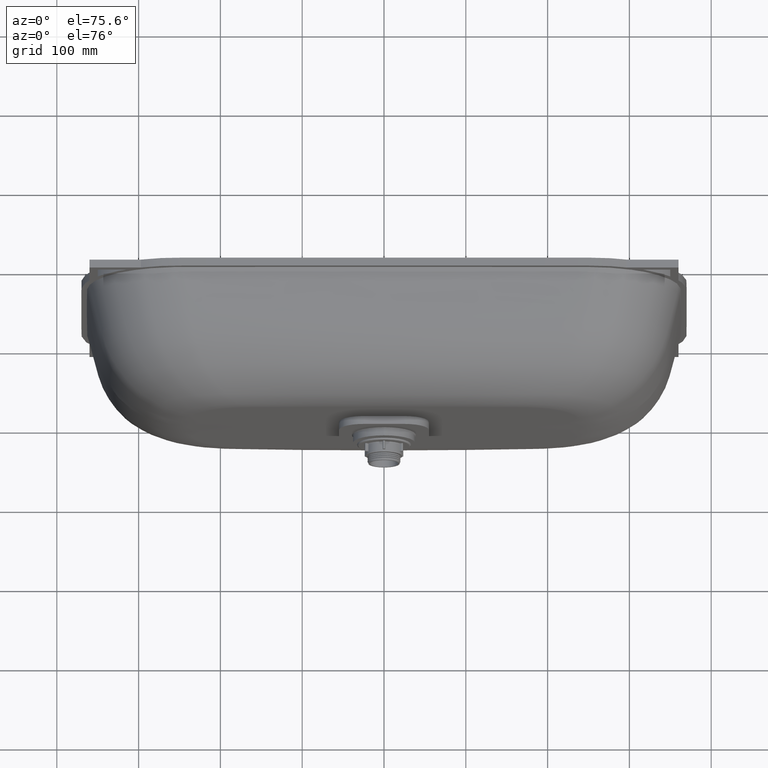
[diagram: clean part render]
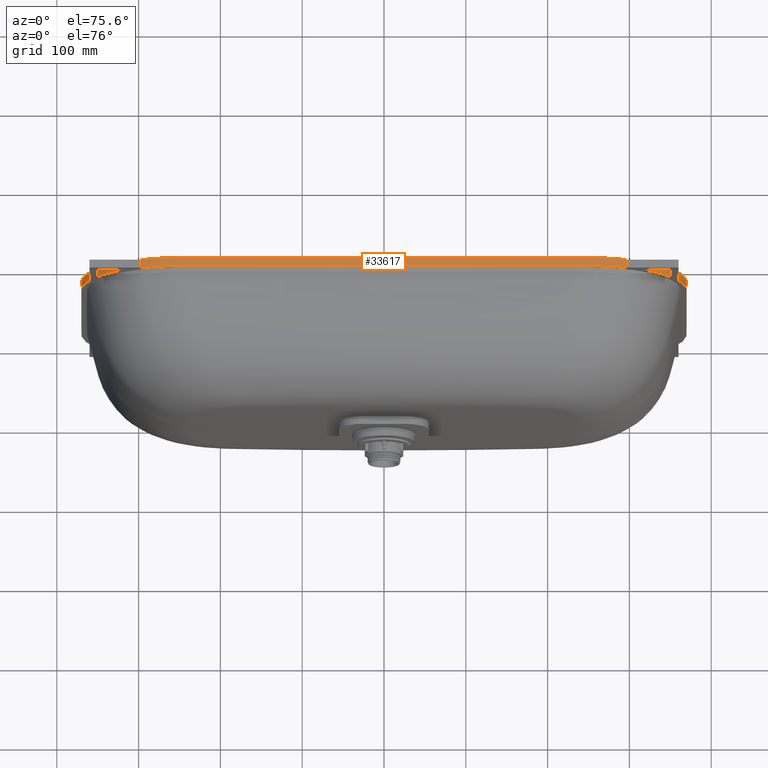
[diagram: same view with one face highlighted and labeled with its STEP entity id]
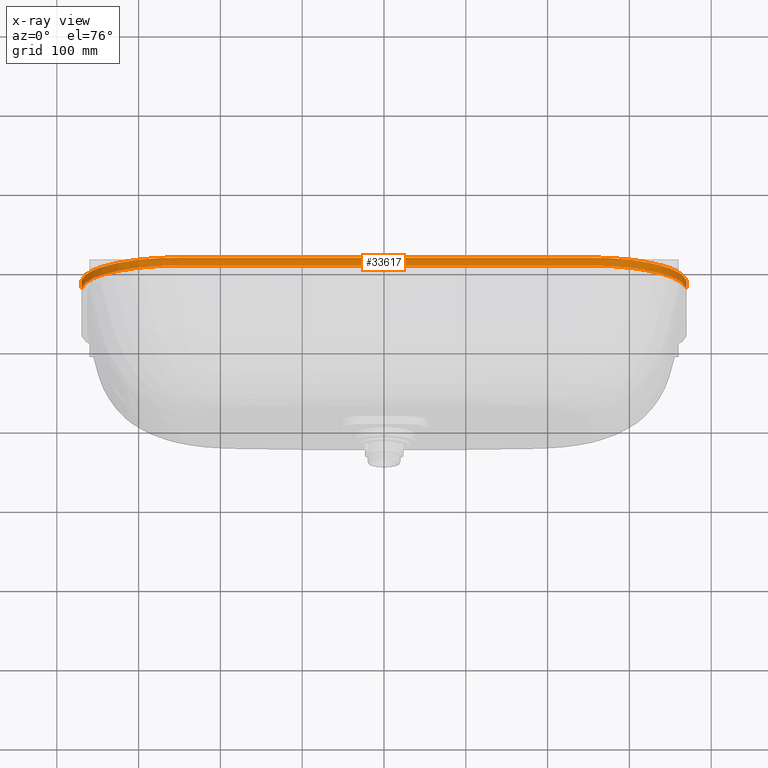
[diagram: x-ray of the same camera — body ghosted, the highlighted face saturated]
A machine part, auxiliary view. The second image highlights one B-rep face of the part: STEP entity #33617.
The next image is the same camera in x-ray: the body ghosted, the highlighted face saturated — about 0% of this face is hidden behind the body in this view.
In plain terms, the highlighted face is a freeform B-spline surface patch.
Its self-contained STEP definition (entity closure, byte-faithful):
#84 = CARTESIAN_POINT ( 'NONE',  ( -64.89067382028767400, -9.999999999999927200, 229.9999999998673000 ) ) ;
#127 = CARTESIAN_POINT ( 'NONE',  ( -254.1704036494610900, 7.255323859892229700E-014, 229.9357047427391500 ) ) ;
#355 = CARTESIAN_POINT ( 'NONE',  ( 129.7813478840280400, 7.285838599102589800E-014, 229.9999999981663400 ) ) ;
#391 = CARTESIAN_POINT ( 'NONE',  ( -194.6720158728519400, 7.257352614727864900E-014, 230.0000000356703000 ) ) ;
#620 = CARTESIAN_POINT ( 'NONE',  ( 235.2282897767607300, -9.999999999999927200, 230.0000025992093200 ) ) ;
#656 = CARTESIAN_POINT ( 'NONE',  ( 178.4493543980382200, 7.257352613307444500E-014, 229.9999999906543500 ) ) ;
#895 = CARTESIAN_POINT ( 'NONE',  ( 249.9071089342732000, 7.285838599102589800E-014, 230.0001508669372800 ) ) ;
#934 = CARTESIAN_POINT ( 'NONE',  ( 252.1423367717181100, 7.256893168442546200E-014, 229.9854392652008000 ) ) ;
#1165 = CARTESIAN_POINT ( 'NONE',  ( 272.5347273984068000, -9.999999999999928900, 227.9402078853942200 ) ) ;
#1200 = CARTESIAN_POINT ( 'NONE',  ( 358.9368303385653000, 5.068706104983447200E-014, 160.6374205879357900 ) ) ;
#1429 = CARTESIAN_POINT ( 'NONE',  ( 344.0916251262449400, 5.898059818321144100E-014, 185.3011088497744400 ) ) ;
#1702 = CARTESIAN_POINT ( 'NONE',  ( 369.2231796589291000, -9.999999999999960900, 123.9083132636472600 ) ) ;
#1802 = VERTEX_POINT ( 'NONE', #77585 ) ;
#1979 = CARTESIAN_POINT ( 'NONE',  ( 369.9998421130369500, 3.469446951953614200E-014, 109.3485733155334900 ) ) ;
#2245 = CARTESIAN_POINT ( 'NONE',  ( 370.0000001376325800, -9.999999999999971600, 93.28033090629530500 ) ) ;
#2515 = CARTESIAN_POINT ( 'NONE',  ( 370.0000000003951800, 5.204170427930421300E-015, 16.22266841846510500 ) ) ;
#2568 = CARTESIAN_POINT ( 'NONE',  ( -370.0000000000000000, -10.00000000000000000, -3.122502256758252800E-014 ) ) ;
#2846 = CARTESIAN_POINT ( 'NONE',  ( -370.0000000564165800, -9.999999999999975100, 78.40955897690190600 ) ) ;
#3122 = CARTESIAN_POINT ( 'NONE',  ( -369.9117756355504400, -9.999999999999964500, 115.0811365367341500 ) ) ;
#3400 = CARTESIAN_POINT ( 'NONE',  ( -289.4804807030344000, -9.999999999999928900, 223.4557360990969500 ) ) ;
#3602 = CARTESIAN_POINT ( 'NONE',  ( 369.9999697595850400, 3.380663933535774200E-014, 107.1399925168131400 ) ) ;
#3683 = CARTESIAN_POINT ( 'NONE',  ( -245.3670214626337700, -9.999999999999927200, 230.0000054136309600 ) ) ;
#3711 = CARTESIAN_POINT ( 'NONE',  ( 369.9999999999998900, 1.698670210949542000E-028, 5.754945131553057500E-013 ) ) ;
#3794 = ORIENTED_EDGE ( 'NONE', *, *, #40063, .T. ) ;
#3896 = CARTESIAN_POINT ( 'NONE',  ( 369.9999999999998900, 1.698670210949542000E-028, 5.754945131553057500E-013 ) ) ;
#3972 = CARTESIAN_POINT ( 'NONE',  ( -1.838806884535415500E-013, -9.999999999999927200, 229.9999999999805900 ) ) ;
#4021 = CARTESIAN_POINT ( 'NONE',  ( -370.0000000000000000, -10.00000000000000000, -3.122502256758252800E-014 ) ) ;
#4252 = CARTESIAN_POINT ( 'NONE',  ( 245.3670214626335200, -9.999999999999927200, 230.0000054136308200 ) ) ;
#4298 = CARTESIAN_POINT ( 'NONE',  ( -369.9999999808320600, -9.999999999999978700, 64.89067556598732300 ) ) ;
#4533 = CARTESIAN_POINT ( 'NONE',  ( 289.4804807030340600, -9.999999999999928900, 223.4557360990970400 ) ) ;
#4579 = CARTESIAN_POINT ( 'NONE',  ( -369.9999973128920500, 3.295974604355933500E-014, 103.4197589538131700 ) ) ;
#4815 = CARTESIAN_POINT ( 'NONE',  ( 369.9117756355506100, -9.999999999999964500, 115.0811365367344900 ) ) ;
#4862 = CARTESIAN_POINT ( 'NONE',  ( -369.9837355351535300, -9.999999999999966200, 112.2304330767915300 ) ) ;
#5097 = CARTESIAN_POINT ( 'NONE',  ( 370.0000000564166400, -9.999999999999975100, 78.40955897690213300 ) ) ;
#5141 = CARTESIAN_POINT ( 'NONE',  ( -365.5811764428860300, 4.510281037539698400E-014, 142.7334832046060700 ) ) ;
#5413 = CARTESIAN_POINT ( 'NONE',  ( -301.3375124675764600, -9.999999999999930700, 218.7966092659684700 ) ) ;
#5687 = CARTESIAN_POINT ( 'NONE',  ( -257.3966411606818400, 7.285838599102589800E-014, 229.7905751632785000 ) ) ;
#5967 = CARTESIAN_POINT ( 'NONE',  ( -247.0602996470170200, -9.999999999999927200, 229.9999833621211800 ) ) ;
#6010 = CARTESIAN_POINT ( 'NONE',  ( -370.0000523813991400, 3.423080837808655100E-014, 108.4842689358032700 ) ) ;
#6254 = CARTESIAN_POINT ( 'NONE',  ( -208.1909280709338400, 7.285838599102589800E-014, 229.9999998948310600 ) ) ;
#6295 = CARTESIAN_POINT ( 'NONE',  ( -353.0913786025861300, 5.427108873845920500E-014, 171.9959201989187200 ) ) ;
#6524 = CARTESIAN_POINT ( 'NONE',  ( -32.44533689492804000, -9.999999999999927200, 230.0000000000374300 ) ) ;
#6564 = CARTESIAN_POINT ( 'NONE',  ( -250.7332074480161500, 7.257326797009672400E-014, 229.9991818206130200 ) ) ;
#6804 = CARTESIAN_POINT ( 'NONE',  ( 156.8191275139742500, 7.285838599102589800E-014, 230.0000000053949200 ) ) ;
#6842 = CARTESIAN_POINT ( 'NONE',  ( -156.8191275139746200, 7.257352613772573300E-014, 230.0000000053952400 ) ) ;
#6988 = CARTESIAN_POINT ( 'NONE',  ( -370.0000000000000000, -10.00000000000000000, -3.122502256758252800E-014 ) ) ;
#7074 = CARTESIAN_POINT ( 'NONE',  ( 241.3132199434992300, -9.999999999999927200, 229.9999933736821400 ) ) ;
#7113 = CARTESIAN_POINT ( 'NONE',  ( 208.1909280709335200, 7.257352610283856700E-014, 229.9999998948308600 ) ) ;
#7341 = CARTESIAN_POINT ( 'NONE',  ( 250.7332074480156900, 7.285838599102589800E-014, 229.9991818206130200 ) ) ;
#7375 = CARTESIAN_POINT ( 'NONE',  ( 257.3966411606815000, 7.250744483662612200E-014, 229.7905751632782800 ) ) ;
#7612 = CARTESIAN_POINT ( 'NONE',  ( 280.3363205952121600, -9.999999999999928900, 226.2329616254817500 ) ) ;
#7647 = CARTESIAN_POINT ( 'NONE',  ( 365.5811764428856300, 4.503770510363108500E-014, 142.7334832046064200 ) ) ;
#7888 = CARTESIAN_POINT ( 'NONE',  ( 353.0913786025860800, 5.377642775528102000E-014, 171.9959201989187800 ) ) ;
#8154 = CARTESIAN_POINT ( 'NONE',  ( 369.6864430236645400, -9.999999999999962700, 119.1001921969906300 ) ) ;
#8421 = CARTESIAN_POINT ( 'NONE',  ( 370.0000523813991400, 3.469446951953614200E-014, 108.4842689358035600 ) ) ;
#8692 = CARTESIAN_POINT ( 'NONE',  ( 369.9999999215504000, -9.999999999999971600, 87.87279466569570700 ) ) ;
#8966 = CARTESIAN_POINT ( 'NONE',  ( 369.9999999999998900, 1.734723475976807100E-015, 5.407556139488741000 ) ) ;
#9020 = CARTESIAN_POINT ( 'NONE',  ( -370.0000000000000000, -9.999999999999998200, 5.407556139488176200 ) ) ;
#9293 = CARTESIAN_POINT ( 'NONE',  ( -370.0000001376324700, -9.999999999999971600, 93.28033090629507700 ) ) ;
#9574 = CARTESIAN_POINT ( 'NONE',  ( -369.2231796589291500, -9.999999999999960900, 123.9083132636468500 ) ) ;
#9860 = CARTESIAN_POINT ( 'NONE',  ( -272.5347273984072600, -9.999999999999928900, 227.9402078853941300 ) ) ;
#10069 = CARTESIAN_POINT ( 'NONE',  ( 369.9999973128919900, 3.263276773659048600E-014, 103.4197589538134400 ) ) ;
#10150 = CARTESIAN_POINT ( 'NONE',  ( -235.2282897767611300, -9.999999999999927200, 230.0000025992095500 ) ) ;
#10429 = CARTESIAN_POINT ( 'NONE',  ( 64.89067382028734700, -9.999999999999927200, 229.9999999998671300 ) ) ;
#10711 = CARTESIAN_POINT ( 'NONE',  ( 248.4051379303400300, -9.999999999999927200, 230.0000288654553300 ) ) ;
#10761 = CARTESIAN_POINT ( 'NONE',  ( -370.0000000564165800, -9.999999999999975100, 78.40955897690190600 ) ) ;
#10998 = CARTESIAN_POINT ( 'NONE',  ( 315.4333475073833600, -9.999999999999934300, 211.1954338164224200 ) ) ;
#11045 = CARTESIAN_POINT ( 'NONE',  ( -370.0000102567384500, 3.295974604355933500E-014, 105.4463998884247800 ) ) ;
#11276 = CARTESIAN_POINT ( 'NONE',  ( 369.9985107857468700, -9.999999999999966200, 110.8386633332187300 ) ) ;
#11318 = CARTESIAN_POINT ( 'NONE',  ( -369.9117756355504400, -9.999999999999964500, 115.0811365367341500 ) ) ;
#11551 = CARTESIAN_POINT ( 'NONE',  ( 370.0000000051377900, -9.999999999999984000, 48.66800487696834700 ) ) ;
#11593 = CARTESIAN_POINT ( 'NONE',  ( -362.6162986912610800, 4.857225732735059900E-014, 151.8170165020855200 ) ) ;
#11872 = CARTESIAN_POINT ( 'NONE',  ( -289.4804807030344000, -9.999999999999928900, 223.4557360990969500 ) ) ;
#12154 = CARTESIAN_POINT ( 'NONE',  ( -254.1704036494610900, 7.285838599102589800E-014, 229.9357047427391500 ) ) ;
#12194 = CARTESIAN_POINT ( 'NONE',  ( -369.9999999986166600, 1.023770658547312000E-014, 32.44533702614217700 ) ) ;
#12421 = CARTESIAN_POINT ( 'NONE',  ( -245.3670214626337700, -9.999999999999927200, 230.0000054136309600 ) ) ;
#12460 = CARTESIAN_POINT ( 'NONE',  ( -370.0002737202537400, 3.470426588967557600E-014, 109.9847503573808300 ) ) ;
#12503 = ORIENTED_EDGE ( 'NONE', *, *, #77393, .T. ) ;
#12702 = CARTESIAN_POINT ( 'NONE',  ( -194.6720158728519400, 7.285838599102589800E-014, 230.0000000356703000 ) ) ;
#12743 = CARTESIAN_POINT ( 'NONE',  ( -330.7752597798501000, 6.293298880005854700E-014, 199.4472116028093500 ) ) ;
#12982 = CARTESIAN_POINT ( 'NONE',  ( -1.838806884535415500E-013, -9.999999999999927200, 229.9999999999805900 ) ) ;
#13021 = CARTESIAN_POINT ( 'NONE',  ( -249.2680254088367100, 7.257349867728125200E-014, 229.9999129777617100 ) ) ;
#13253 = CARTESIAN_POINT ( 'NONE',  ( 178.4493543980382200, 7.285838599102589800E-014, 229.9999999906543500 ) ) ;
#13289 = CARTESIAN_POINT ( 'NONE',  ( -97.33601062392065700, 7.257352613617832800E-014, 230.0000000004911600 ) ) ;
#13519 = CARTESIAN_POINT ( 'NONE',  ( 245.3670214626335200, -9.999999999999927200, 230.0000054136308200 ) ) ;
#13558 = CARTESIAN_POINT ( 'NONE',  ( 227.1174660438716200, 7.257352591661618700E-014, 229.9999993046549200 ) ) ;
#13659 = VECTOR ( 'NONE', #45424, 1000.000000000000000 ) ;
#13792 = CARTESIAN_POINT ( 'NONE',  ( 252.1423367717181100, 7.285838599102589800E-014, 229.9854392652008000 ) ) ;
#13829 = CARTESIAN_POINT ( 'NONE',  ( 266.2030324053480400, 7.223676244358867300E-014, 228.9327285942425200 ) ) ;
#14063 = CARTESIAN_POINT ( 'NONE',  ( 289.4804807030340600, -9.999999999999928900, 223.4557360990970400 ) ) ;
#14098 = CARTESIAN_POINT ( 'NONE',  ( 368.5694265312981800, 4.060189371351814900E-014, 128.6755109102223300 ) ) ;
#14333 = CARTESIAN_POINT ( 'NONE',  ( 358.9368303385653000, 5.030698080332740600E-014, 160.6374205879357900 ) ) ;
#14603 = CARTESIAN_POINT ( 'NONE',  ( 369.9117756355506100, -9.999999999999964500, 115.0811365367344900 ) ) ;
#14880 = CARTESIAN_POINT ( 'NONE',  ( 369.9999697595850400, 3.295974604355933500E-014, 107.1399925168131400 ) ) ;
#15148 = CARTESIAN_POINT ( 'NONE',  ( 370.0000000564166400, -9.999999999999975100, 78.40955897690213300 ) ) ;
#15415 = CARTESIAN_POINT ( 'NONE',  ( 369.9999999999998900, 0.0000000000000000000, 5.753749085366989100E-013 ) ) ;
#15554 = VECTOR ( 'NONE', #23734, 1000.000000000000000 ) ;
#15746 = CARTESIAN_POINT ( 'NONE',  ( -370.0000015512933900, -9.999999999999969800, 100.7155903604958800 ) ) ;
#15941 = EDGE_LOOP ( 'NONE', ( #3794, #12503, #23809, #23732 ) ) ;
#16028 = CARTESIAN_POINT ( 'NONE',  ( -367.4470581483515700, -9.999999999999957400, 134.9774096808805000 ) ) ;
#16310 = CARTESIAN_POINT ( 'NONE',  ( -261.4155354305588000, -9.999999999999927200, 229.4878407854311600 ) ) ;
#16514 = CARTESIAN_POINT ( 'NONE',  ( 369.9999994738989800, 3.071313493234845600E-014, 97.33605917397717600 ) ) ;
#16591 = CARTESIAN_POINT ( 'NONE',  ( -219.0059958477467900, -9.999999999999927200, 230.0000001821697100 ) ) ;
#16886 = CARTESIAN_POINT ( 'NONE',  ( 129.7813478840280400, -9.999999999999927200, 229.9999999981663400 ) ) ;
#16933 = CARTESIAN_POINT ( 'NONE',  ( -370.0000000000000000, 0.0000000000000000000, -3.438039326914875700E-014 ) ) ;
#17166 = CARTESIAN_POINT ( 'NONE',  ( 249.9071089342732000, -9.999999999999927200, 230.0001508669372800 ) ) ;
#17212 = CARTESIAN_POINT ( 'NONE',  ( -369.9999999215502800, -9.999999999999971600, 87.87279466569543700 ) ) ;
#17444 = CARTESIAN_POINT ( 'NONE',  ( 344.0916251262449400, -9.999999999999941400, 185.3011088497744400 ) ) ;
#17488 = CARTESIAN_POINT ( 'NONE',  ( -369.9999697595849900, 3.295974604355933500E-014, 107.1399925168127500 ) ) ;
#17717 = CARTESIAN_POINT ( 'NONE',  ( 369.9998421130369500, -9.999999999999966200, 109.3485733155334900 ) ) ;
#17765 = CARTESIAN_POINT ( 'NONE',  ( -369.6864430236645400, -9.999999999999962700, 119.1001921969900600 ) ) ;
#17993 = CARTESIAN_POINT ( 'NONE',  ( 370.0000000003951800, -9.999999999999994700, 16.22266841846510800 ) ) ;
#18039 = CARTESIAN_POINT ( 'NONE',  ( -358.9368303385656400, 5.030698080332740600E-014, 160.6374205879356200 ) ) ;
#18309 = CARTESIAN_POINT ( 'NONE',  ( -280.3363205952126100, -9.999999999999928900, 226.2329616254816400 ) ) ;
#18581 = CARTESIAN_POINT ( 'NONE',  ( -252.1423367717185900, 7.285838599102589800E-014, 229.9854392652010200 ) ) ;
#18620 = CARTESIAN_POINT ( 'NONE',  ( -369.9999999808320600, 2.047541364857563200E-014, 64.89067556598732300 ) ) ;
#18861 = CARTESIAN_POINT ( 'NONE',  ( -241.3132199434998600, -9.999999999999927200, 229.9999933736821700 ) ) ;
#18905 = CARTESIAN_POINT ( 'NONE',  ( -369.9837355351535300, 3.541286203545979000E-014, 112.2304330767915300 ) ) ;
#19146 = CARTESIAN_POINT ( 'NONE',  ( -178.4493543980385700, 7.285838599102589800E-014, 229.9999999906548000 ) ) ;
#19189 = CARTESIAN_POINT ( 'NONE',  ( -301.3375124675764600, 6.903844104798719000E-014, 218.7966092659684700 ) ) ;
#19417 = CARTESIAN_POINT ( 'NONE',  ( 32.44533689492779200, -9.999999999999927200, 230.0000000000372900 ) ) ;
#19454 = CARTESIAN_POINT ( 'NONE',  ( -247.0602996470170200, 7.257352088615582600E-014, 229.9999833621211800 ) ) ;
#19685 = CARTESIAN_POINT ( 'NONE',  ( 194.6720158728516600, 7.285838599102589800E-014, 230.0000000356700100 ) ) ;
#19722 = CARTESIAN_POINT ( 'NONE',  ( -32.44533689492804000, 7.257352613603516000E-014, 230.0000000000374300 ) ) ;
#19952 = CARTESIAN_POINT ( 'NONE',  ( 247.0602996470166500, -9.999999999999927200, 229.9999833621211300 ) ) ;
#19991 = CARTESIAN_POINT ( 'NONE',  ( 241.3132199434992300, 7.257352404517441300E-014, 229.9999933736821400 ) ) ;
#20229 = CARTESIAN_POINT ( 'NONE',  ( 254.1704036494607500, 7.285838599102589800E-014, 229.9357047427392300 ) ) ;
#20263 = CARTESIAN_POINT ( 'NONE',  ( 280.3363205952121600, 7.138488588416028100E-014, 226.2329616254817500 ) ) ;
#20494 = CARTESIAN_POINT ( 'NONE',  ( 301.3375124675763500, -9.999999999999930700, 218.7966092659686700 ) ) ;
#20769 = CARTESIAN_POINT ( 'NONE',  ( 362.6162986912609100, 4.857225732735059900E-014, 151.8170165020856600 ) ) ;
#21040 = CARTESIAN_POINT ( 'NONE',  ( 369.9837355351535300, -9.999999999999966200, 112.2304330767920200 ) ) ;
#21302 = CARTESIAN_POINT ( 'NONE',  ( 370.0000102567383900, 3.295974604355933500E-014, 105.4463998884250800 ) ) ;
#21564 = CARTESIAN_POINT ( 'NONE',  ( 369.9999999808321100, -9.999999999999978700, 64.89067556598752200 ) ) ;
#22168 = CARTESIAN_POINT ( 'NONE',  ( -370.0000102567384500, -9.999999999999968000, 105.4463998884247800 ) ) ;
#22452 = CARTESIAN_POINT ( 'NONE',  ( -362.6162986912610800, -9.999999999999952000, 151.8170165020855200 ) ) ;
#22653 = CARTESIAN_POINT ( 'NONE',  ( 369.6864430236645400, 3.758052570092913200E-014, 119.1001921969906300 ) ) ;
#22735 = CARTESIAN_POINT ( 'NONE',  ( -254.1704036494610900, -9.999999999999927200, 229.9357047427391500 ) ) ;
#22941 = CARTESIAN_POINT ( 'NONE',  ( 369.9999999215504000, 2.772712417528816500E-014, 87.87279466569570700 ) ) ;
#23024 = CARTESIAN_POINT ( 'NONE',  ( -194.6720158728519400, -9.999999999999927200, 230.0000000356703000 ) ) ;
#23309 = CARTESIAN_POINT ( 'NONE',  ( 178.4493543980382200, -9.999999999999927200, 229.9999999906543500 ) ) ;
#23354 = CARTESIAN_POINT ( 'NONE',  ( -370.0000000000000000, 1.734723475976807100E-015, 5.407556139488172600 ) ) ;
#23585 = CARTESIAN_POINT ( 'NONE',  ( 252.1423367717181100, -9.999999999999927200, 229.9854392652008000 ) ) ;
#23634 = CARTESIAN_POINT ( 'NONE',  ( -370.0000001376324700, -9.999999999999971600, 93.28033090629507700 ) ) ;
#23732 = ORIENTED_EDGE ( 'NONE', *, *, #73994, .F. ) ;
#23734 = DIRECTION ( 'NONE',  ( 3.108277162125713300E-032, 1.000000000000000000, -3.155370701566232400E-016 ) ) ;
#23809 = ORIENTED_EDGE ( 'NONE', *, *, #82451, .F. ) ;
#23878 = CARTESIAN_POINT ( 'NONE',  ( 358.9368303385653000, -9.999999999999950300, 160.6374205879357900 ) ) ;
#23925 = CARTESIAN_POINT ( 'NONE',  ( -370.0000523813991400, 3.469446951953614200E-014, 108.4842689358032700 ) ) ;
#24157 = CARTESIAN_POINT ( 'NONE',  ( 369.9999697595850400, -9.999999999999968000, 107.1399925168131400 ) ) ;
#24202 = CARTESIAN_POINT ( 'NONE',  ( -369.2231796589291500, -9.999999999999960900, 123.9083132636468500 ) ) ;
#24429 = CARTESIAN_POINT ( 'NONE',  ( 369.9999999999998900, -10.00000000000000000, 5.785302792382651700E-013 ) ) ;
#24471 = CARTESIAN_POINT ( 'NONE',  ( -353.0913786025861300, 5.377642775528102000E-014, 171.9959201989187200 ) ) ;
#24742 = CARTESIAN_POINT ( 'NONE',  ( -272.5347273984072600, -9.999999999999928900, 227.9402078853941300 ) ) ;
#24781 = CARTESIAN_POINT ( 'NONE',  ( -370.0000000000000000, 1.706284420961570000E-015, 5.407556139488172600 ) ) ;
#24950 = CARTESIAN_POINT ( 'NONE',  ( -370.0000000000000000, -10.00000000000000000, -3.122502256758252800E-014 ) ) ;
#25021 = CARTESIAN_POINT ( 'NONE',  ( -250.7332074480161500, 7.285838599102589800E-014, 229.9991818206130200 ) ) ;
#25062 = CARTESIAN_POINT ( 'NONE',  ( -369.9999999215502800, 2.772712417528809800E-014, 87.87279466569543700 ) ) ;
#25296 = CARTESIAN_POINT ( 'NONE',  ( -235.2282897767611300, -9.999999999999927200, 230.0000025992095500 ) ) ;
#25335 = CARTESIAN_POINT ( 'NONE',  ( -369.6864430236645400, 3.758052570092898100E-014, 119.1001921969900600 ) ) ;
#25572 = CARTESIAN_POINT ( 'NONE',  ( -156.8191275139746200, 7.285838599102589800E-014, 230.0000000053952400 ) ) ;
#25613 = CARTESIAN_POINT ( 'NONE',  ( -280.3363205952126100, 7.138488588416026800E-014, 226.2329616254816400 ) ) ;
#25846 = CARTESIAN_POINT ( 'NONE',  ( 64.89067382028734700, -9.999999999999927200, 229.9999999998671300 ) ) ;
#25885 = CARTESIAN_POINT ( 'NONE',  ( -241.3132199434998600, 7.257352404517443800E-014, 229.9999933736821700 ) ) ;
#26123 = CARTESIAN_POINT ( 'NONE',  ( 208.1909280709335200, 7.285838599102589800E-014, 229.9999998948308600 ) ) ;
#26158 = CARTESIAN_POINT ( 'NONE',  ( 32.44533689492779200, 7.257352613603510900E-014, 230.0000000000372900 ) ) ;
#26391 = CARTESIAN_POINT ( 'NONE',  ( 248.4051379303400300, -9.999999999999927200, 230.0000288654553300 ) ) ;
#26429 = CARTESIAN_POINT ( 'NONE',  ( 247.0602996470166500, 7.257352088615577600E-014, 229.9999833621211300 ) ) ;
#26674 = CARTESIAN_POINT ( 'NONE',  ( 257.3966411606815000, 7.285838599102589800E-014, 229.7905751632782800 ) ) ;
#26710 = CARTESIAN_POINT ( 'NONE',  ( 301.3375124675763500, 6.903844104798722800E-014, 218.7966092659686700 ) ) ;
#26951 = CARTESIAN_POINT ( 'NONE',  ( 315.4333475073833600, -9.999999999999934300, 211.1954338164224200 ) ) ;
#27223 = CARTESIAN_POINT ( 'NONE',  ( 365.5811764428856300, 4.510281037539698400E-014, 142.7334832046064200 ) ) ;
#27490 = CARTESIAN_POINT ( 'NONE',  ( 369.9985107857468700, -9.999999999999966200, 110.8386633332187300 ) ) ;
#27760 = CARTESIAN_POINT ( 'NONE',  ( 369.9999973128919900, 3.295974604355933500E-014, 103.4197589538134400 ) ) ;
#28038 = CARTESIAN_POINT ( 'NONE',  ( 370.0000000051377900, -9.999999999999984000, 48.66800487696834700 ) ) ;
#28635 = CARTESIAN_POINT ( 'NONE',  ( -370.0000523813991400, -9.999999999999966200, 108.4842689358032700 ) ) ;
#28918 = CARTESIAN_POINT ( 'NONE',  ( -353.0913786025861300, -9.999999999999946700, 171.9959201989187200 ) ) ;
#29124 = CARTESIAN_POINT ( 'NONE',  ( 369.9837355351535300, 3.541286203545991600E-014, 112.2304330767920200 ) ) ;
#29206 = CARTESIAN_POINT ( 'NONE',  ( -250.7332074480161500, -9.999999999999927200, 229.9991818206130200 ) ) ;
#29410 = CARTESIAN_POINT ( 'NONE',  ( 369.9999999808321100, 2.047541364857567000E-014, 64.89067556598752200 ) ) ;
#29491 = CARTESIAN_POINT ( 'NONE',  ( -156.8191275139746200, -9.999999999999927200, 230.0000000053952400 ) ) ;
#29769 = CARTESIAN_POINT ( 'NONE',  ( 208.1909280709335200, -9.999999999999927200, 229.9999998948308600 ) ) ;
#29818 = CARTESIAN_POINT ( 'NONE',  ( -370.0000000003951200, 5.204170427930421300E-015, 16.22266841846471100 ) ) ;
#30058 = CARTESIAN_POINT ( 'NONE',  ( 257.3966411606815000, -9.999999999999927200, 229.7905751632782800 ) ) ;
#30104 = CARTESIAN_POINT ( 'NONE',  ( -369.9999994738987000, -9.999999999999969800, 97.33605917397690600 ) ) ;
#30344 = CARTESIAN_POINT ( 'NONE',  ( 365.5811764428856300, -9.999999999999955600, 142.7334832046064200 ) ) ;
#30386 = CARTESIAN_POINT ( 'NONE',  ( -369.9998421130367800, 3.469446951953614200E-014, 109.3485733155331600 ) ) ;
#30613 = CARTESIAN_POINT ( 'NONE',  ( 369.9999973128919900, -9.999999999999968000, 103.4197589538134400 ) ) ;
#30658 = CARTESIAN_POINT ( 'NONE',  ( -368.5694265312982900, -9.999999999999960900, 128.6755109102219000 ) ) ;
#30836 = VERTEX_POINT ( 'NONE', #24950 ) ;
#30942 = CARTESIAN_POINT ( 'NONE',  ( -344.0916251262451100, 5.898059818321144100E-014, 185.3011088497743200 ) ) ;
#31218 = CARTESIAN_POINT ( 'NONE',  ( -266.2030324053482700, -9.999999999999927200, 228.9327285942424900 ) ) ;
#31491 = CARTESIAN_POINT ( 'NONE',  ( -249.9071089342735700, 7.285838599102589800E-014, 230.0001508669374700 ) ) ;
#31530 = CARTESIAN_POINT ( 'NONE',  ( -369.9999994738987000, 3.071313493234839300E-014, 97.33605917397690600 ) ) ;
#31768 = CARTESIAN_POINT ( 'NONE',  ( -227.1174660438720100, -9.999999999999927200, 229.9999993046550900 ) ) ;
#31811 = CARTESIAN_POINT ( 'NONE',  ( -368.5694265312982900, 4.060189371351803600E-014, 128.6755109102219000 ) ) ;
#32061 = CARTESIAN_POINT ( 'NONE',  ( -129.7813478840283500, 7.285838599102589800E-014, 229.9999999981666600 ) ) ;
#32103 = CARTESIAN_POINT ( 'NONE',  ( -266.2030324053482700, 7.223676244358868500E-014, 228.9327285942424900 ) ) ;
#32331 = CARTESIAN_POINT ( 'NONE',  ( 97.33601062392030200, -9.999999999999927200, 230.0000000004907600 ) ) ;
#32369 = CARTESIAN_POINT ( 'NONE',  ( -227.1174660438720100, 7.257352591661626300E-014, 229.9999993046550900 ) ) ;
#32603 = CARTESIAN_POINT ( 'NONE',  ( 219.0059958477463900, 7.285838599102589800E-014, 230.0000001821694300 ) ) ;
#32640 = CARTESIAN_POINT ( 'NONE',  ( 97.33601062392030200, 7.257352613617820200E-014, 230.0000000004907600 ) ) ;
#32877 = CARTESIAN_POINT ( 'NONE',  ( 249.2680254088363100, -9.999999999999927200, 229.9999129777617400 ) ) ;
#32917 = CARTESIAN_POINT ( 'NONE',  ( 249.2680254088363100, 7.257349867728124000E-014, 229.9999129777617400 ) ) ;
#33153 = CARTESIAN_POINT ( 'NONE',  ( 261.4155354305584100, 7.285838599102589800E-014, 229.4878407854312200 ) ) ;
#33188 = CARTESIAN_POINT ( 'NONE',  ( 330.7752597798499900, 6.293298880005856000E-014, 199.4472116028094600 ) ) ;
#33414 = CARTESIAN_POINT ( 'NONE',  ( 330.7752597798499900, -9.999999999999937800, 199.4472116028094600 ) ) ;
#33555 = FACE_OUTER_BOUND ( 'NONE', #15941, .T. ) ;
#33617 = ADVANCED_FACE ( 'NONE', ( #33555 ), #79668, .T. ) ;
#33680 = CARTESIAN_POINT ( 'NONE',  ( 367.4470581483514600, 4.336808689942017700E-014, 134.9774096808809800 ) ) ;
#33956 = CARTESIAN_POINT ( 'NONE',  ( 370.0002737202538600, -9.999999999999966200, 109.9847503573812600 ) ) ;
#34225 = CARTESIAN_POINT ( 'NONE',  ( 370.0000015512933400, 3.122502256758252800E-014, 100.7155903604962200 ) ) ;
#34493 = CARTESIAN_POINT ( 'NONE',  ( 369.9999999986166000, -9.999999999999989300, 32.44533702614248900 ) ) ;
#34819 = CARTESIAN_POINT ( 'NONE',  ( -369.9999999986166600, -9.999999999999989300, 32.44533702614217700 ) ) ;
#35108 = CARTESIAN_POINT ( 'NONE',  ( -370.0002737202537400, -9.999999999999966200, 109.9847503573808300 ) ) ;
#35390 = CARTESIAN_POINT ( 'NONE',  ( -330.7752597798501000, -9.999999999999937800, 199.4472116028093500 ) ) ;
#35596 = CARTESIAN_POINT ( 'NONE',  ( 370.0002737202538600, 3.470426588967569000E-014, 109.9847503573812600 ) ) ;
#35672 = CARTESIAN_POINT ( 'NONE',  ( -249.2680254088367100, -9.999999999999927200, 229.9999129777617100 ) ) ;
#35881 = CARTESIAN_POINT ( 'NONE',  ( 369.9999999986166000, 1.023770658547319800E-014, 32.44533702614248900 ) ) ;
#35966 = CARTESIAN_POINT ( 'NONE',  ( -97.33601062392065700, -9.999999999999927200, 230.0000000004911600 ) ) ;
#36255 = CARTESIAN_POINT ( 'NONE',  ( 227.1174660438716200, -9.999999999999927200, 229.9999993046549200 ) ) ;
#36300 = CARTESIAN_POINT ( 'NONE',  ( -369.9999999986166600, 1.040834085586084300E-014, 32.44533702614217700 ) ) ;
#36526 = CARTESIAN_POINT ( 'NONE',  ( 266.2030324053480400, -9.999999999999927200, 228.9327285942425200 ) ) ;
#36576 = CARTESIAN_POINT ( 'NONE',  ( -370.0000015512933900, -9.999999999999969800, 100.7155903604958800 ) ) ;
#36809 = CARTESIAN_POINT ( 'NONE',  ( 368.5694265312981800, -9.999999999999960900, 128.6755109102223300 ) ) ;
#36855 = CARTESIAN_POINT ( 'NONE',  ( -370.0002737202537400, 3.469446951953614200E-014, 109.9847503573808300 ) ) ;
#37090 = CARTESIAN_POINT ( 'NONE',  ( 369.9999994738989800, -9.999999999999969800, 97.33605917397717600 ) ) ;
#37132 = CARTESIAN_POINT ( 'NONE',  ( -367.4470581483515700, -9.999999999999957400, 134.9774096808805000 ) ) ;
#37407 = CARTESIAN_POINT ( 'NONE',  ( -330.7752597798501000, 6.245004513516505500E-014, 199.4472116028093500 ) ) ;
#37676 = CARTESIAN_POINT ( 'NONE',  ( -261.4155354305588000, -9.999999999999927200, 229.4878407854311600 ) ) ;
#37958 = CARTESIAN_POINT ( 'NONE',  ( -249.2680254088367100, 7.285838599102589800E-014, 229.9999129777617100 ) ) ;
#37999 = CARTESIAN_POINT ( 'NONE',  ( -369.9999973128920500, 3.263276773659042200E-014, 103.4197589538131700 ) ) ;
#38238 = CARTESIAN_POINT ( 'NONE',  ( -219.0059958477467900, -9.999999999999927200, 230.0000001821697100 ) ) ;
#38279 = CARTESIAN_POINT ( 'NONE',  ( -365.5811764428860300, 4.503770510363100300E-014, 142.7334832046060700 ) ) ;
#38514 = CARTESIAN_POINT ( 'NONE',  ( -97.33601062392065700, 7.285838599102589800E-014, 230.0000000004911600 ) ) ;
#38554 = CARTESIAN_POINT ( 'NONE',  ( -257.3966411606818400, 7.250744483662622300E-014, 229.7905751632785000 ) ) ;
#38783 = CARTESIAN_POINT ( 'NONE',  ( 129.7813478840280400, -9.999999999999927200, 229.9999999981663400 ) ) ;
#38822 = CARTESIAN_POINT ( 'NONE',  ( -208.1909280709338400, 7.257352610283865600E-014, 229.9999998948310600 ) ) ;
#39061 = CARTESIAN_POINT ( 'NONE',  ( 227.1174660438716200, 7.285838599102589800E-014, 229.9999993046549200 ) ) ;
#39098 = CARTESIAN_POINT ( 'NONE',  ( 156.8191275139742500, 7.257352613772564400E-014, 230.0000000053949200 ) ) ;
#39332 = CARTESIAN_POINT ( 'NONE',  ( 249.9071089342732000, -9.999999999999927200, 230.0001508669372800 ) ) ;
#39369 = CARTESIAN_POINT ( 'NONE',  ( 250.7332074480156900, 7.257326797009669900E-014, 229.9991818206130200 ) ) ;
#39604 = CARTESIAN_POINT ( 'NONE',  ( 266.2030324053480400, 7.285838599102589800E-014, 228.9327285942425200 ) ) ;
#39640 = CARTESIAN_POINT ( 'NONE',  ( 353.0913786025860800, 5.427108873845919800E-014, 171.9959201989187800 ) ) ;
#39876 = CARTESIAN_POINT ( 'NONE',  ( 344.0916251262449400, -9.999999999999941400, 185.3011088497744400 ) ) ;
#40063 = EDGE_CURVE ( 'NONE', #30836, #68062, #72149, .T. ) ;
#40155 = CARTESIAN_POINT ( 'NONE',  ( 368.5694265312981800, 3.989863994746656300E-014, 128.6755109102223300 ) ) ;
#40425 = CARTESIAN_POINT ( 'NONE',  ( 369.9998421130369500, -9.999999999999966200, 109.3485733155334900 ) ) ;
#40692 = CARTESIAN_POINT ( 'NONE',  ( 369.9999994738989800, 3.122502256758252800E-014, 97.33605917397717600 ) ) ;
#40972 = CARTESIAN_POINT ( 'NONE',  ( 370.0000000003951800, -9.999999999999994700, 16.22266841846510800 ) ) ;
#41300 = CARTESIAN_POINT ( 'NONE',  ( -369.9999999808320600, -9.999999999999978700, 64.89067556598732300 ) ) ;
#41572 = CARTESIAN_POINT ( 'NONE',  ( -369.9837355351535300, -9.999999999999966200, 112.2304330767915300 ) ) ;
#41855 = CARTESIAN_POINT ( 'NONE',  ( -301.3375124675764600, -9.999999999999930700, 218.7966092659684700 ) ) ;
#42063 = CARTESIAN_POINT ( 'NONE',  ( 370.0000523813991400, 3.423080837808661400E-014, 108.4842689358035600 ) ) ;
#42146 = CARTESIAN_POINT ( 'NONE',  ( -247.0602996470170200, -9.999999999999927200, 229.9999833621211800 ) ) ;
#42350 = CARTESIAN_POINT ( 'NONE',  ( 369.9999999999998900, 1.706284420961726000E-015, 5.407556139488741000 ) ) ;
#42426 = CARTESIAN_POINT ( 'NONE',  ( -32.44533689492804000, -9.999999999999927200, 230.0000000000374300 ) ) ;
#42701 = CARTESIAN_POINT ( 'NONE',  ( 241.3132199434992300, -9.999999999999927200, 229.9999933736821400 ) ) ;
#42747 = CARTESIAN_POINT ( 'NONE',  ( -370.0000000051376800, 1.561251128379126400E-014, 48.66800487696811200 ) ) ;
#42988 = CARTESIAN_POINT ( 'NONE',  ( 280.3363205952121600, -9.999999999999928900, 226.2329616254817500 ) ) ;
#43035 = CARTESIAN_POINT ( 'NONE',  ( -369.9999973128920500, -9.999999999999968000, 103.4197589538131700 ) ) ;
#43267 = CARTESIAN_POINT ( 'NONE',  ( 369.6864430236645400, -9.999999999999962700, 119.1001921969906300 ) ) ;
#43311 = CARTESIAN_POINT ( 'NONE',  ( -369.9985107857468700, 3.469446951953614200E-014, 110.8386633332183600 ) ) ;
#43536 = CARTESIAN_POINT ( 'NONE',  ( 369.9999999215504000, -9.999999999999971600, 87.87279466569570700 ) ) ;
#43578 = CARTESIAN_POINT ( 'NONE',  ( -365.5811764428860300, -9.999999999999955600, 142.7334832046060700 ) ) ;
#43856 = CARTESIAN_POINT ( 'NONE',  ( -315.4333475073835300, 6.591949208711867000E-014, 211.1954338164223400 ) ) ;
#44136 = CARTESIAN_POINT ( 'NONE',  ( -257.3966411606818400, -9.999999999999927200, 229.7905751632785000 ) ) ;
#44412 = CARTESIAN_POINT ( 'NONE',  ( -248.4051379303404300, 7.285838599102589800E-014, 230.0000288654554500 ) ) ;
#44451 = CARTESIAN_POINT ( 'NONE',  ( -369.9999697595849900, 3.380663933535764700E-014, 107.1399925168127500 ) ) ;
#44689 = CARTESIAN_POINT ( 'NONE',  ( -208.1909280709338400, -9.999999999999927200, 229.9999998948310600 ) ) ;
#44732 = CARTESIAN_POINT ( 'NONE',  ( -358.9368303385656400, 5.068706104983444700E-014, 160.6374205879356200 ) ) ;
#44968 = CARTESIAN_POINT ( 'NONE',  ( -64.89067382028767400, 7.285838599102589800E-014, 229.9999999998673000 ) ) ;
#45009 = CARTESIAN_POINT ( 'NONE',  ( -252.1423367717185900, 7.256893168442556300E-014, 229.9854392652010200 ) ) ;
#45242 = CARTESIAN_POINT ( 'NONE',  ( 156.8191275139742500, -9.999999999999927200, 230.0000000053949200 ) ) ;
#45279 = CARTESIAN_POINT ( 'NONE',  ( -178.4493543980385700, 7.257352613307458300E-014, 229.9999999906548000 ) ) ;
#45424 = DIRECTION ( 'NONE',  ( 3.108277162125713300E-032, 1.000000000000000000, -3.155370701566232400E-016 ) ) ;
#45509 = CARTESIAN_POINT ( 'NONE',  ( 235.2282897767607300, 7.285838599102589800E-014, 230.0000025992093200 ) ) ;
#45546 = CARTESIAN_POINT ( 'NONE',  ( 194.6720158728516600, 7.257352614727856000E-014, 230.0000000356700100 ) ) ;
#45779 = CARTESIAN_POINT ( 'NONE',  ( 250.7332074480156900, -9.999999999999927200, 229.9991818206130200 ) ) ;
#45817 = CARTESIAN_POINT ( 'NONE',  ( 254.1704036494607500, 7.255323859892229700E-014, 229.9357047427392300 ) ) ;
#46055 = CARTESIAN_POINT ( 'NONE',  ( 272.5347273984068000, 7.112366251504909100E-014, 227.9402078853942200 ) ) ;
#46090 = CARTESIAN_POINT ( 'NONE',  ( 362.6162986912609100, 4.790389658698782300E-014, 151.8170165020856600 ) ) ;
#46319 = CARTESIAN_POINT ( 'NONE',  ( 353.0913786025860800, -9.999999999999946700, 171.9959201989187800 ) ) ;
#46584 = CARTESIAN_POINT ( 'NONE',  ( 369.2231796589291000, 3.989863994746656300E-014, 123.9083132636472600 ) ) ;
#46855 = CARTESIAN_POINT ( 'NONE',  ( 370.0000523813991400, -9.999999999999966200, 108.4842689358035600 ) ) ;
#47129 = CARTESIAN_POINT ( 'NONE',  ( 370.0000001376325800, 2.949029909160572100E-014, 93.28033090629530500 ) ) ;
#47400 = CARTESIAN_POINT ( 'NONE',  ( 369.9999999999998900, -9.999999999999998200, 5.407556139488744600 ) ) ;
#47722 = CARTESIAN_POINT ( 'NONE',  ( -369.9999999215502800, -9.999999999999971600, 87.87279466569543700 ) ) ;
#48007 = CARTESIAN_POINT ( 'NONE',  ( -369.6864430236645400, -9.999999999999962700, 119.1001921969900600 ) ) ;
#48289 = CARTESIAN_POINT ( 'NONE',  ( -280.3363205952126100, -9.999999999999928900, 226.2329616254816400 ) ) ;
#48492 = CARTESIAN_POINT ( 'NONE',  ( 370.0000102567383900, 3.327224807935731700E-014, 105.4463998884250800 ) ) ;
#48570 = CARTESIAN_POINT ( 'NONE',  ( -241.3132199434998600, -9.999999999999927200, 229.9999933736821700 ) ) ;
#48849 = CARTESIAN_POINT ( 'NONE',  ( 32.44533689492779200, -9.999999999999927200, 230.0000000000372900 ) ) ;
#49141 = CARTESIAN_POINT ( 'NONE',  ( 247.0602996470166500, -9.999999999999927200, 229.9999833621211300 ) ) ;
#49185 = CARTESIAN_POINT ( 'NONE',  ( -369.9999999808320600, 2.081668171172168500E-014, 64.89067556598732300 ) ) ;
#49413 = CARTESIAN_POINT ( 'NONE',  ( 301.3375124675763500, -9.999999999999930700, 218.7966092659686700 ) ) ;
#49459 = CARTESIAN_POINT ( 'NONE',  ( -370.0000102567384500, -9.999999999999968000, 105.4463998884247800 ) ) ;
#49694 = CARTESIAN_POINT ( 'NONE',  ( 369.9837355351535300, -9.999999999999966200, 112.2304330767920200 ) ) ;
#49736 = CARTESIAN_POINT ( 'NONE',  ( -369.9837355351535300, 3.469446951953614200E-014, 112.2304330767915300 ) ) ;
#49973 = CARTESIAN_POINT ( 'NONE',  ( 369.9999999808321100, -9.999999999999978700, 64.89067556598752200 ) ) ;
#50018 = CARTESIAN_POINT ( 'NONE',  ( -362.6162986912610800, -9.999999999999952000, 151.8170165020855200 ) ) ;
#50288 = CARTESIAN_POINT ( 'NONE',  ( -301.3375124675764600, 6.938893903907228400E-014, 218.7966092659684700 ) ) ;
#50559 = CARTESIAN_POINT ( 'NONE',  ( -254.1704036494610900, -9.999999999999927200, 229.9357047427391500 ) ) ;
#50598 = CARTESIAN_POINT ( 'NONE',  ( -370.0000000003951200, 5.118853262884746900E-015, 16.22266841846471100 ) ) ;
#50839 = CARTESIAN_POINT ( 'NONE',  ( -247.0602996470170200, 7.285838599102589800E-014, 229.9999833621211800 ) ) ;
#50878 = CARTESIAN_POINT ( 'NONE',  ( -369.9998421130367800, 3.450352844979006100E-014, 109.3485733155331600 ) ) ;
#51124 = CARTESIAN_POINT ( 'NONE',  ( -194.6720158728519400, -9.999999999999927200, 230.0000000356703000 ) ) ;
#51166 = CARTESIAN_POINT ( 'NONE',  ( -344.0916251262451100, 5.846936898323132500E-014, 185.3011088497743200 ) ) ;
#51402 = CARTESIAN_POINT ( 'NONE',  ( -32.44533689492804000, 7.285838599102589800E-014, 230.0000000000374300 ) ) ;
#51441 = CARTESIAN_POINT ( 'NONE',  ( -249.9071089342735700, 7.257357374013479200E-014, 230.0001508669374700 ) ) ;
#51670 = CARTESIAN_POINT ( 'NONE',  ( 178.4493543980382200, -9.999999999999927200, 229.9999999906543500 ) ) ;
#51711 = CARTESIAN_POINT ( 'NONE',  ( -129.7813478840283500, 7.257352613544485200E-014, 229.9999999981666600 ) ) ;
#51730 = LINE ( 'NONE', #81151, #15554 ) ;
#51948 = CARTESIAN_POINT ( 'NONE',  ( 241.3132199434992300, 7.285838599102589800E-014, 229.9999933736821400 ) ) ;
#51985 = CARTESIAN_POINT ( 'NONE',  ( 219.0059958477463900, 7.257352619350453500E-014, 230.0000001821694300 ) ) ;
#52008 = B_SPLINE_CURVE_WITH_KNOTS ( 'NONE', 3,
 ( #69607, #24781, #50598, #12194, #57048, #18620, #63462, #25062, #69882, #31530, #76323, #37999, #82749, #44451, #6010, #50878, #12460, #57326, #18905, #63738, #25335, #70164, #31811, #76603, #38279, #83040, #44732, #6295, #51166, #12743, #57605, #19189, #64023, #25613, #70438, #32103, #76876, #38554, #127, #45009, #6564, #51441, #13021, #57874, #19454, #64292, #25885, #70698, #32369, #77152, #38822, #391, #45279, #6842, #51711, #13289, #58150, #19722, #64556, #26158, #70980, #32640, #77422, #39098, #656, #45546, #7113, #51985, #13558, #58423, #19991, #64823, #26429, #71253, #32917, #77686, #39369, #934, #45817, #7375, #52259, #13829, #58688, #20263, #65101, #26710, #71521, #33188, #77962, #39640, #1200, #46090, #7647, #52522, #14098, #58958, #22653, #67492, #29124, #73931, #35596, #80357, #42063, #3602, #48492, #10069, #54919, #16514, #61363, #22941, #67770, #29410, #74222, #35881, #80641, #42350, #3896 ),
 .UNSPECIFIED., .F., .F.,
 ( 4, 1, 1, 1, 1, 1, 1, 1, 1, 1, 1, 1, 1, 1, 1, 1, 1, 1, 1, 1, 1, 1, 1, 1, 1, 1, 1, 1, 1, 1, 1, 1, 1, 1, 1, 1, 1, 1, 1, 1, 1, 1, 1, 1, 1, 1, 1, 1, 1, 1, 1, 1, 1, 1, 1, 1, 1, 1, 1, 1, 1, 1, 1, 1, 1, 1, 1, 1, 1, 1, 1, 1, 1, 1, 1, 1, 1, 1, 1, 1, 1, 1, 1, 1, 1, 1, 1, 1, 1, 1, 1, 1, 1, 1, 1, 1, 1, 1, 1, 1, 1, 1, 1, 1, 1, 1, 1, 1, 1, 1, 1, 1, 1, 1, 4 ),
 ( 0.0000000000000000000, 0.007812500000000000000, 0.01562500000000000000, 0.02343750000000000000, 0.03125000000000000000, 0.03906250000000000000, 0.04296875000000000000, 0.04492187500000000000, 0.04687500000000000000, 0.04882812500000000000, 0.04980468750000000000, 0.05078125000000000000, 0.05175781250000000000, 0.05224609375000000000, 0.05273437500000000000, 0.05297851562500000000, 0.05322265625000000000, 0.05371093750000000000, 0.05468750000000000000, 0.05664062500000000000, 0.05859375000000000000, 0.06054687500000000000, 0.06250000000000000000, 0.06640625000000000000, 0.07031250000000000000, 0.07421875000000000000, 0.07812500000000000000, 0.08593750000000000000, 0.09375000000000000000, 0.1015625000000000000, 0.1093750000000000000, 0.1132812500000000000, 0.1171875000000000000, 0.1210937500000000000, 0.1230468750000000000, 0.1250000000000000000, 0.1269531250000000000, 0.1279296875000000000, 0.1289062500000000000, 0.1293945312500000000, 0.1296386718750000000, 0.1298828125000000000, 0.1303710937500000000, 0.1308593750000000000, 0.1318359375000000000, 0.1328125000000000000, 0.1367187500000000000, 0.1406250000000000000, 0.1445312500000000000, 0.1484375000000000000, 0.1562500000000000000, 0.1640625000000000000, 0.1718750000000000000, 0.1875000000000000000, 0.2031250000000000000, 0.2187500000000000000, 0.2343750000000000000, 0.2500000000000000000, 0.2656250000000000000, 0.2812500000000000000, 0.2968750000000000000, 0.3125000000000000000, 0.3281250000000000000, 0.3359375000000000000, 0.3437500000000000000, 0.3515625000000000000, 0.3554687500000000000, 0.3593750000000000000, 0.3632812500000000000, 0.3671875000000000000, 0.3681640625000000000, 0.3691406250000000000, 0.3696289062500000000, 0.3701171875000000000, 0.3703613281250000000, 0.3706054687500000000, 0.3710937500000000000, 0.3720703125000000000, 0.3730468750000000000, 0.3750000000000000000, 0.3769531250000000000, 0.3789062500000000000, 0.3828125000000000000, 0.3867187500000000000, 0.3906250000000000000, 0.3984375000000000000, 0.4062500000000000000, 0.4140625000000000000, 0.4218750000000000000, 0.4257812500000000000, 0.4296875000000000000, 0.4335937500000000000, 0.4375000000000000000, 0.4394531250000000000, 0.4414062500000000000, 0.4433593750000000000, 0.4453125000000000000, 0.4462890625000000000, 0.4467773437500000000, 0.4470214843750000000, 0.4472656250000000000, 0.4477539062500000000, 0.4482421875000000000, 0.4492187500000000000, 0.4501953125000000000, 0.4511718750000000000, 0.4531250000000000000, 0.4550781250000000000, 0.4570312500000000000, 0.4609375000000000000, 0.4687500000000000000, 0.4765625000000000000, 0.4843750000000000000, 0.4921875000000000000, 0.5000000000000000000 ),
 .UNSPECIFIED. ) ;
#52221 = CARTESIAN_POINT ( 'NONE',  ( 252.1423367717181100, -9.999999999999927200, 229.9854392652008000 ) ) ;
#52259 = CARTESIAN_POINT ( 'NONE',  ( 261.4155354305584100, 7.241192091800459100E-014, 229.4878407854312200 ) ) ;
#52490 = CARTESIAN_POINT ( 'NONE',  ( 280.3363205952121600, 7.112366251504909100E-014, 226.2329616254817500 ) ) ;
#52522 = CARTESIAN_POINT ( 'NONE',  ( 367.4470581483514600, 4.259037638803540300E-014, 134.9774096808809800 ) ) ;
#52749 = CARTESIAN_POINT ( 'NONE',  ( 358.9368303385653000, -9.999999999999950300, 160.6374205879357900 ) ) ;
#53021 = CARTESIAN_POINT ( 'NONE',  ( 369.6864430236645400, 3.816391647148975600E-014, 119.1001921969906300 ) ) ;
#53289 = CARTESIAN_POINT ( 'NONE',  ( 369.9999697595850400, -9.999999999999968000, 107.1399925168131400 ) ) ;
#53552 = CARTESIAN_POINT ( 'NONE',  ( 369.9999999215504000, 2.775557561562891400E-014, 87.87279466569570700 ) ) ;
#53827 = CARTESIAN_POINT ( 'NONE',  ( 369.9999999999998900, -10.00000000000000000, 5.785302792382651700E-013 ) ) ;
#54159 = CARTESIAN_POINT ( 'NONE',  ( -369.9999994738987000, -9.999999999999969800, 97.33605917397690600 ) ) ;
#54433 = CARTESIAN_POINT ( 'NONE',  ( -368.5694265312982900, -9.999999999999960900, 128.6755109102219000 ) ) ;
#54711 = CARTESIAN_POINT ( 'NONE',  ( -266.2030324053482700, -9.999999999999927200, 228.9327285942424900 ) ) ;
#54919 = CARTESIAN_POINT ( 'NONE',  ( 370.0000015512933400, 3.177950230144561200E-014, 100.7155903604962200 ) ) ;
#55006 = CARTESIAN_POINT ( 'NONE',  ( -227.1174660438720100, -9.999999999999927200, 229.9999993046550900 ) ) ;
#55293 = CARTESIAN_POINT ( 'NONE',  ( 97.33601062392030200, -9.999999999999927200, 230.0000000004907600 ) ) ;
#55570 = CARTESIAN_POINT ( 'NONE',  ( 249.2680254088363100, -9.999999999999927200, 229.9999129777617400 ) ) ;
#55617 = CARTESIAN_POINT ( 'NONE',  ( -370.0000000564165800, 2.428612866367529900E-014, 78.40955897690190600 ) ) ;
#55852 = CARTESIAN_POINT ( 'NONE',  ( 330.7752597798499900, -9.999999999999937800, 199.4472116028094600 ) ) ;
#55901 = CARTESIAN_POINT ( 'NONE',  ( -369.9999697595849900, -9.999999999999968000, 107.1399925168127500 ) ) ;
#56139 = CARTESIAN_POINT ( 'NONE',  ( 370.0002737202538600, -9.999999999999966200, 109.9847503573812600 ) ) ;
#56182 = CARTESIAN_POINT ( 'NONE',  ( -369.9117756355504400, 3.642919299551294900E-014, 115.0811365367341500 ) ) ;
#56411 = CARTESIAN_POINT ( 'NONE',  ( 369.9999999986166000, -9.999999999999989300, 32.44533702614248900 ) ) ;
#56454 = CARTESIAN_POINT ( 'NONE',  ( -358.9368303385656400, -9.999999999999950300, 160.6374205879356200 ) ) ;
#56727 = CARTESIAN_POINT ( 'NONE',  ( -289.4804807030344000, 7.112366251504909100E-014, 223.4557360990969500 ) ) ;
#57009 = CARTESIAN_POINT ( 'NONE',  ( -252.1423367717185900, -9.999999999999927200, 229.9854392652010200 ) ) ;
#57048 = CARTESIAN_POINT ( 'NONE',  ( -370.0000000051376800, 1.535655966924677900E-014, 48.66800487696811200 ) ) ;
#57058 = VERTEX_POINT ( 'NONE', #3711 ) ;
#57286 = CARTESIAN_POINT ( 'NONE',  ( -245.3670214626337700, 7.285838599102589800E-014, 230.0000054136309600 ) ) ;
#57326 = CARTESIAN_POINT ( 'NONE',  ( -369.9985107857468700, 3.497370708824007800E-014, 110.8386633332183600 ) ) ;
#57562 = CARTESIAN_POINT ( 'NONE',  ( -178.4493543980385700, -9.999999999999927200, 229.9999999906548000 ) ) ;
#57605 = CARTESIAN_POINT ( 'NONE',  ( -315.4333475073835300, 6.663998841689094700E-014, 211.1954338164223400 ) ) ;
#57835 = CARTESIAN_POINT ( 'NONE',  ( -1.838806884535415500E-013, 7.285838599102589800E-014, 229.9999999999805900 ) ) ;
#57874 = CARTESIAN_POINT ( 'NONE',  ( -248.4051379303404300, 7.257353524414460100E-014, 230.0000288654554500 ) ) ;
#58114 = CARTESIAN_POINT ( 'NONE',  ( 194.6720158728516600, -9.999999999999927200, 230.0000000356700100 ) ) ;
#58150 = CARTESIAN_POINT ( 'NONE',  ( -64.89067382028767400, 7.257352613598147900E-014, 229.9999999998673000 ) ) ;
#58388 = CARTESIAN_POINT ( 'NONE',  ( 245.3670214626335200, 7.285838599102589800E-014, 230.0000054136308200 ) ) ;
#58423 = CARTESIAN_POINT ( 'NONE',  ( 235.2282897767607300, 7.257352695617023400E-014, 230.0000025992093200 ) ) ;
#58651 = CARTESIAN_POINT ( 'NONE',  ( 254.1704036494607500, -9.999999999999927200, 229.9357047427392300 ) ) ;
#58688 = CARTESIAN_POINT ( 'NONE',  ( 272.5347273984068000, 7.192358536704890400E-014, 227.9402078853942200 ) ) ;
#58924 = CARTESIAN_POINT ( 'NONE',  ( 289.4804807030340600, 7.112366251504909100E-014, 223.4557360990970400 ) ) ;
#58958 = CARTESIAN_POINT ( 'NONE',  ( 369.2231796589291000, 3.909766613526030200E-014, 123.9083132636472600 ) ) ;
#59192 = CARTESIAN_POINT ( 'NONE',  ( 362.6162986912609100, -9.999999999999952000, 151.8170165020856600 ) ) ;
#59452 = CARTESIAN_POINT ( 'NONE',  ( 369.9117756355506100, 3.642919299551294900E-014, 115.0811365367344900 ) ) ;
#59716 = CARTESIAN_POINT ( 'NONE',  ( 370.0000102567383900, -9.999999999999968000, 105.4463998884250800 ) ) ;
#59991 = CARTESIAN_POINT ( 'NONE',  ( 370.0000000564166400, 2.428612866367529900E-014, 78.40955897690213300 ) ) ;
#60588 = CARTESIAN_POINT ( 'NONE',  ( -369.9999973128920500, -9.999999999999968000, 103.4197589538131700 ) ) ;
#60871 = CARTESIAN_POINT ( 'NONE',  ( -365.5811764428860300, -9.999999999999955600, 142.7334832046060700 ) ) ;
#61160 = CARTESIAN_POINT ( 'NONE',  ( -257.3966411606818400, -9.999999999999927200, 229.7905751632785000 ) ) ;
#61363 = CARTESIAN_POINT ( 'NONE',  ( 370.0000001376325800, 2.943340231741271900E-014, 93.28033090629530500 ) ) ;
#61440 = CARTESIAN_POINT ( 'NONE',  ( -208.1909280709338400, -9.999999999999927200, 229.9999998948310600 ) ) ;
#61717 = CARTESIAN_POINT ( 'NONE',  ( 156.8191275139742500, -9.999999999999927200, 230.0000000053949200 ) ) ;
#61763 = CARTESIAN_POINT ( 'NONE',  ( -370.0000000000000000, -9.999999999999998200, 5.407556139488176200 ) ) ;
#62001 = CARTESIAN_POINT ( 'NONE',  ( 250.7332074480156900, -9.999999999999927200, 229.9991818206130200 ) ) ;
#62048 = CARTESIAN_POINT ( 'NONE',  ( -369.9999999215502800, 2.775557561562891400E-014, 87.87279466569543700 ) ) ;
#62284 = CARTESIAN_POINT ( 'NONE',  ( 353.0913786025860800, -9.999999999999946700, 171.9959201989187800 ) ) ;
#62329 = CARTESIAN_POINT ( 'NONE',  ( -370.0000523813991400, -9.999999999999966200, 108.4842689358032700 ) ) ;
#62559 = CARTESIAN_POINT ( 'NONE',  ( 370.0000523813991400, -9.999999999999966200, 108.4842689358035600 ) ) ;
#62606 = CARTESIAN_POINT ( 'NONE',  ( -369.6864430236645400, 3.816391647148975600E-014, 119.1001921969900600 ) ) ;
#62834 = CARTESIAN_POINT ( 'NONE',  ( 369.9999999999998900, -9.999999999999998200, 5.407556139488744600 ) ) ;
#62879 = CARTESIAN_POINT ( 'NONE',  ( -353.0913786025861300, -9.999999999999946700, 171.9959201989187200 ) ) ;
#63156 = CARTESIAN_POINT ( 'NONE',  ( -280.3363205952126100, 7.112366251504909100E-014, 226.2329616254816400 ) ) ;
#63421 = CARTESIAN_POINT ( 'NONE',  ( -250.7332074480161500, -9.999999999999927200, 229.9991818206130200 ) ) ;
#63462 = CARTESIAN_POINT ( 'NONE',  ( -370.0000000564165800, 2.474112251184459900E-014, 78.40955897690190600 ) ) ;
#63698 = CARTESIAN_POINT ( 'NONE',  ( -241.3132199434998600, 7.285838599102589800E-014, 229.9999933736821700 ) ) ;
#63738 = CARTESIAN_POINT ( 'NONE',  ( -369.9117756355504400, 3.631236465309543400E-014, 115.0811365367341500 ) ) ;
#63980 = CARTESIAN_POINT ( 'NONE',  ( -156.8191275139746200, -9.999999999999927200, 230.0000000053952400 ) ) ;
#64023 = CARTESIAN_POINT ( 'NONE',  ( -289.4804807030344000, 7.050856827840065100E-014, 223.4557360990969500 ) ) ;
#64253 = CARTESIAN_POINT ( 'NONE',  ( 32.44533689492779200, 7.285838599102589800E-014, 230.0000000000372900 ) ) ;
#64292 = CARTESIAN_POINT ( 'NONE',  ( -245.3670214626337700, 7.257352784422461800E-014, 230.0000054136309600 ) ) ;
#64519 = CARTESIAN_POINT ( 'NONE',  ( 208.1909280709335200, -9.999999999999927200, 229.9999998948308600 ) ) ;
#64556 = CARTESIAN_POINT ( 'NONE',  ( -1.838806884535415500E-013, 7.257352613601721100E-014, 229.9999999999805900 ) ) ;
#64787 = CARTESIAN_POINT ( 'NONE',  ( 247.0602996470166500, 7.285838599102589800E-014, 229.9999833621211300 ) ) ;
#64823 = CARTESIAN_POINT ( 'NONE',  ( 245.3670214626335200, 7.257352784422452900E-014, 230.0000054136308200 ) ) ;
#65065 = CARTESIAN_POINT ( 'NONE',  ( 257.3966411606815000, -9.999999999999927200, 229.7905751632782800 ) ) ;
#65101 = CARTESIAN_POINT ( 'NONE',  ( 289.4804807030340600, 7.050856827840065100E-014, 223.4557360990970400 ) ) ;
#65333 = CARTESIAN_POINT ( 'NONE',  ( 301.3375124675763500, 6.938893903907228400E-014, 218.7966092659686700 ) ) ;
#65598 = CARTESIAN_POINT ( 'NONE',  ( 365.5811764428856300, -9.999999999999955600, 142.7334832046064200 ) ) ;
#65862 = CARTESIAN_POINT ( 'NONE',  ( 369.9837355351535300, 3.469446951953614200E-014, 112.2304330767920200 ) ) ;
#66133 = CARTESIAN_POINT ( 'NONE',  ( 369.9999973128919900, -9.999999999999968000, 103.4197589538134400 ) ) ;
#66400 = CARTESIAN_POINT ( 'NONE',  ( 369.9999999808321100, 2.081668171172168500E-014, 64.89067556598752200 ) ) ;
#67007 = CARTESIAN_POINT ( 'NONE',  ( -369.9999697595849900, -9.999999999999968000, 107.1399925168127500 ) ) ;
#67289 = CARTESIAN_POINT ( 'NONE',  ( -358.9368303385656400, -9.999999999999950300, 160.6374205879356200 ) ) ;
#67492 = CARTESIAN_POINT ( 'NONE',  ( 369.9117756355506100, 3.631236465309551600E-014, 115.0811365367344900 ) ) ;
#67571 = CARTESIAN_POINT ( 'NONE',  ( -252.1423367717185900, -9.999999999999927200, 229.9854392652010200 ) ) ;
#67770 = CARTESIAN_POINT ( 'NONE',  ( 370.0000000564166400, 2.474112251184464300E-014, 78.40955897690213300 ) ) ;
#67854 = CARTESIAN_POINT ( 'NONE',  ( -178.4493543980385700, -9.999999999999927200, 229.9999999906548000 ) ) ;
#68062 = VERTEX_POINT ( 'NONE', #75029 ) ;
#68148 = CARTESIAN_POINT ( 'NONE',  ( 194.6720158728516600, -9.999999999999927200, 230.0000000356700100 ) ) ;
#68193 = CARTESIAN_POINT ( 'NONE',  ( -370.0000000003951200, -9.999999999999994700, 16.22266841846471400 ) ) ;
#68423 = CARTESIAN_POINT ( 'NONE',  ( 254.1704036494607500, -9.999999999999927200, 229.9357047427392300 ) ) ;
#68469 = CARTESIAN_POINT ( 'NONE',  ( -370.0000001376324700, 2.949029909160572100E-014, 93.28033090629507700 ) ) ;
#68701 = CARTESIAN_POINT ( 'NONE',  ( 362.6162986912609100, -9.999999999999952000, 151.8170165020856600 ) ) ;
#68744 = CARTESIAN_POINT ( 'NONE',  ( -369.9998421130367800, -9.999999999999966200, 109.3485733155331600 ) ) ;
#68979 = CARTESIAN_POINT ( 'NONE',  ( 370.0000102567383900, -9.999999999999968000, 105.4463998884250800 ) ) ;
#69026 = CARTESIAN_POINT ( 'NONE',  ( -369.2231796589291500, 3.989863994746656300E-014, 123.9083132636468500 ) ) ;
#69291 = CARTESIAN_POINT ( 'NONE',  ( -344.0916251262451100, -9.999999999999941400, 185.3011088497743200 ) ) ;
#69567 = CARTESIAN_POINT ( 'NONE',  ( -272.5347273984072600, 7.112366251504909100E-014, 227.9402078853941300 ) ) ;
#69607 = CARTESIAN_POINT ( 'NONE',  ( -370.0000000000000000, 7.703719777548943400E-031, -3.426078865054194000E-014 ) ) ;
#69843 = CARTESIAN_POINT ( 'NONE',  ( -249.9071089342735700, -9.999999999999927200, 230.0001508669374700 ) ) ;
#69882 = CARTESIAN_POINT ( 'NONE',  ( -370.0000001376324700, 2.943340231741267500E-014, 93.28033090629507700 ) ) ;
#70125 = CARTESIAN_POINT ( 'NONE',  ( -235.2282897767611300, 7.285838599102589800E-014, 230.0000025992095500 ) ) ;
#70164 = CARTESIAN_POINT ( 'NONE',  ( -369.2231796589291500, 3.909766613526019500E-014, 123.9083132636468500 ) ) ;
#70398 = CARTESIAN_POINT ( 'NONE',  ( -129.7813478840283500, -9.999999999999927200, 229.9999999981666600 ) ) ;
#70438 = CARTESIAN_POINT ( 'NONE',  ( -272.5347273984072600, 7.192358536704890400E-014, 227.9402078853941300 ) ) ;
#70660 = CARTESIAN_POINT ( 'NONE',  ( 64.89067382028734700, 7.285838599102589800E-014, 229.9999999998671300 ) ) ;
#70698 = CARTESIAN_POINT ( 'NONE',  ( -235.2282897767611300, 7.257352695617032300E-014, 230.0000025992095500 ) ) ;
#70944 = CARTESIAN_POINT ( 'NONE',  ( 219.0059958477463900, -9.999999999999927200, 230.0000001821694300 ) ) ;
#70980 = CARTESIAN_POINT ( 'NONE',  ( 64.89067382028734700, 7.257352613598141600E-014, 229.9999999998671300 ) ) ;
#71213 = CARTESIAN_POINT ( 'NONE',  ( 248.4051379303400300, 7.285838599102589800E-014, 230.0000288654553300 ) ) ;
#71253 = CARTESIAN_POINT ( 'NONE',  ( 248.4051379303400300, 7.257353524414453800E-014, 230.0000288654553300 ) ) ;
#71488 = CARTESIAN_POINT ( 'NONE',  ( 261.4155354305584100, -9.999999999999927200, 229.4878407854312200 ) ) ;
#71521 = CARTESIAN_POINT ( 'NONE',  ( 315.4333475073833600, 6.663998841689094700E-014, 211.1954338164224200 ) ) ;
#71749 = CARTESIAN_POINT ( 'NONE',  ( 315.4333475073833600, 6.591949208711867000E-014, 211.1954338164224200 ) ) ;
#72027 = CARTESIAN_POINT ( 'NONE',  ( 367.4470581483514600, -9.999999999999957400, 134.9774096808809800 ) ) ;
#72149 = B_SPLINE_CURVE_WITH_KNOTS ( 'NONE', 3,
 ( #2568, #9020, #73159, #34819, #79592, #41300, #2846, #47722, #9293, #54159, #15746, #60588, #22168, #67007, #28635, #73435, #35108, #79873, #41572, #3122, #48007, #9574, #54433, #16028, #60871, #22452, #67289, #28918, #73719, #35390, #80153, #41855, #3400, #48289, #9860, #54711, #16310, #61160, #22735, #67571, #29206, #74014, #35672, #80435, #42146, #3683, #48570, #10150, #55006, #16591, #61440, #23024, #67854, #29491, #74302, #35966, #80722, #42426, #3972, #48849, #10429, #55293, #16886, #61717, #23309, #68148, #29769, #74574, #36255, #81005, #42701, #4252, #49141, #10711, #55570, #17166, #62001, #23585, #68423, #30058, #74854, #36526, #81283, #42988, #4533, #49413, #10998, #55852, #17444, #62284, #23878, #68701, #30344, #75139, #36809, #81566, #43267, #4815, #49694, #11276, #56139, #17717, #62559, #24157, #68979, #30613, #75409, #37090, #81843, #43536, #5097, #49973, #11551, #56411, #17993, #62834, #24429 ),
 .UNSPECIFIED., .F., .F.,
 ( 4, 1, 1, 1, 1, 1, 1, 1, 1, 1, 1, 1, 1, 1, 1, 1, 1, 1, 1, 1, 1, 1, 1, 1, 1, 1, 1, 1, 1, 1, 1, 1, 1, 1, 1, 1, 1, 1, 1, 1, 1, 1, 1, 1, 1, 1, 1, 1, 1, 1, 1, 1, 1, 1, 1, 1, 1, 1, 1, 1, 1, 1, 1, 1, 1, 1, 1, 1, 1, 1, 1, 1, 1, 1, 1, 1, 1, 1, 1, 1, 1, 1, 1, 1, 1, 1, 1, 1, 1, 1, 1, 1, 1, 1, 1, 1, 1, 1, 1, 1, 1, 1, 1, 1, 1, 1, 1, 1, 1, 1, 1, 1, 1, 1, 4 ),
 ( 0.0000000000000000000, 0.007812500000000000000, 0.01562500000000000000, 0.02343750000000000000, 0.03125000000000000000, 0.03906250000000000000, 0.04296875000000000000, 0.04492187500000000000, 0.04687500000000000000, 0.04882812500000000000, 0.04980468750000000000, 0.05078125000000000000, 0.05175781250000000000, 0.05224609375000000000, 0.05273437500000000000, 0.05297851562500000000, 0.05322265625000000000, 0.05371093750000000000, 0.05468750000000000000, 0.05664062500000000000, 0.05859375000000000000, 0.06054687500000000000, 0.06250000000000000000, 0.06640625000000000000, 0.07031250000000000000, 0.07421875000000000000, 0.07812500000000000000, 0.08593750000000000000, 0.09375000000000000000, 0.1015625000000000000, 0.1093750000000000000, 0.1132812500000000000, 0.1171875000000000000, 0.1210937500000000000, 0.1230468750000000000, 0.1250000000000000000, 0.1269531250000000000, 0.1279296875000000000, 0.1289062500000000000, 0.1293945312500000000, 0.1296386718750000000, 0.1298828125000000000, 0.1303710937500000000, 0.1308593750000000000, 0.1318359375000000000, 0.1328125000000000000, 0.1367187500000000000, 0.1406250000000000000, 0.1445312500000000000, 0.1484375000000000000, 0.1562500000000000000, 0.1640625000000000000, 0.1718750000000000000, 0.1875000000000000000, 0.2031250000000000000, 0.2187500000000000000, 0.2343750000000000000, 0.2500000000000000000, 0.2656250000000000000, 0.2812500000000000000, 0.2968750000000000000, 0.3125000000000000000, 0.3281250000000000000, 0.3359375000000000000, 0.3437500000000000000, 0.3515625000000000000, 0.3554687500000000000, 0.3593750000000000000, 0.3632812500000000000, 0.3671875000000000000, 0.3681640625000000000, 0.3691406250000000000, 0.3696289062500000000, 0.3701171875000000000, 0.3703613281250000000, 0.3706054687500000000, 0.3710937500000000000, 0.3720703125000000000, 0.3730468750000000000, 0.3750000000000000000, 0.3769531250000000000, 0.3789062500000000000, 0.3828125000000000000, 0.3867187500000000000, 0.3906250000000000000, 0.3984375000000000000, 0.4062500000000000000, 0.4140625000000000000, 0.4218750000000000000, 0.4257812500000000000, 0.4296875000000000000, 0.4335937500000000000, 0.4375000000000000000, 0.4394531250000000000, 0.4414062500000000000, 0.4433593750000000000, 0.4453125000000000000, 0.4462890625000000000, 0.4467773437500000000, 0.4470214843750000000, 0.4472656250000000000, 0.4477539062500000000, 0.4482421875000000000, 0.4492187500000000000, 0.4501953125000000000, 0.4511718750000000000, 0.4531250000000000000, 0.4550781250000000000, 0.4570312500000000000, 0.4609375000000000000, 0.4687500000000000000, 0.4765625000000000000, 0.4843750000000000000, 0.4921875000000000000, 0.5000000000000000000 ),
 .UNSPECIFIED. ) ;
#72300 = CARTESIAN_POINT ( 'NONE',  ( 369.9985107857468700, 3.469446951953614200E-014, 110.8386633332187300 ) ) ;
#72560 = CARTESIAN_POINT ( 'NONE',  ( 370.0000015512933400, -9.999999999999969800, 100.7155903604962200 ) ) ;
#72832 = CARTESIAN_POINT ( 'NONE',  ( 370.0000000051377900, 1.561251128379126400E-014, 48.66800487696834700 ) ) ;
#73159 = CARTESIAN_POINT ( 'NONE',  ( -370.0000000003951200, -9.999999999999994700, 16.22266841846471400 ) ) ;
#73435 = CARTESIAN_POINT ( 'NONE',  ( -369.9998421130367800, -9.999999999999966200, 109.3485733155331600 ) ) ;
#73719 = CARTESIAN_POINT ( 'NONE',  ( -344.0916251262451100, -9.999999999999941400, 185.3011088497743200 ) ) ;
#73931 = CARTESIAN_POINT ( 'NONE',  ( 369.9985107857468700, 3.497370708824017300E-014, 110.8386633332187300 ) ) ;
#73994 = EDGE_CURVE ( 'NONE', #30836, #1802, #75785, .T. ) ;
#74014 = CARTESIAN_POINT ( 'NONE',  ( -249.9071089342735700, -9.999999999999927200, 230.0001508669374700 ) ) ;
#74222 = CARTESIAN_POINT ( 'NONE',  ( 370.0000000051377900, 1.535655966924683000E-014, 48.66800487696834700 ) ) ;
#74302 = CARTESIAN_POINT ( 'NONE',  ( -129.7813478840283500, -9.999999999999927200, 229.9999999981666600 ) ) ;
#74574 = CARTESIAN_POINT ( 'NONE',  ( 219.0059958477463900, -9.999999999999927200, 230.0000001821694300 ) ) ;
#74618 = CARTESIAN_POINT ( 'NONE',  ( -369.9999999986166600, -9.999999999999989300, 32.44533702614217700 ) ) ;
#74854 = CARTESIAN_POINT ( 'NONE',  ( 261.4155354305584100, -9.999999999999927200, 229.4878407854312200 ) ) ;
#74901 = CARTESIAN_POINT ( 'NONE',  ( -369.9999994738987000, 3.122502256758252800E-014, 97.33605917397690600 ) ) ;
#75029 = CARTESIAN_POINT ( 'NONE',  ( 369.9999999999998900, -10.00000000000000000, 5.785302792382651700E-013 ) ) ;
#75139 = CARTESIAN_POINT ( 'NONE',  ( 367.4470581483514600, -9.999999999999957400, 134.9774096808809800 ) ) ;
#75185 = CARTESIAN_POINT ( 'NONE',  ( -370.0002737202537400, -9.999999999999966200, 109.9847503573808300 ) ) ;
#75409 = CARTESIAN_POINT ( 'NONE',  ( 370.0000015512933400, -9.999999999999969800, 100.7155903604962200 ) ) ;
#75452 = CARTESIAN_POINT ( 'NONE',  ( -368.5694265312982900, 3.989863994746656300E-014, 128.6755109102219000 ) ) ;
#75725 = CARTESIAN_POINT ( 'NONE',  ( -330.7752597798501000, -9.999999999999937800, 199.4472116028093500 ) ) ;
#75785 = LINE ( 'NONE', #6988, #13659 ) ;
#76012 = CARTESIAN_POINT ( 'NONE',  ( -266.2030324053482700, 7.285838599102589800E-014, 228.9327285942424900 ) ) ;
#76280 = CARTESIAN_POINT ( 'NONE',  ( -249.2680254088367100, -9.999999999999927200, 229.9999129777617100 ) ) ;
#76323 = CARTESIAN_POINT ( 'NONE',  ( -370.0000015512933900, 3.177950230144553000E-014, 100.7155903604958800 ) ) ;
#76563 = CARTESIAN_POINT ( 'NONE',  ( -227.1174660438720100, 7.285838599102589800E-014, 229.9999993046550900 ) ) ;
#76603 = CARTESIAN_POINT ( 'NONE',  ( -367.4470581483515700, 4.259037638803528300E-014, 134.9774096808805000 ) ) ;
#76836 = CARTESIAN_POINT ( 'NONE',  ( -97.33601062392065700, -9.999999999999927200, 230.0000000004911600 ) ) ;
#76876 = CARTESIAN_POINT ( 'NONE',  ( -261.4155354305588000, 7.241192091800459100E-014, 229.4878407854311600 ) ) ;
#77113 = CARTESIAN_POINT ( 'NONE',  ( 97.33601062392030200, 7.285838599102589800E-014, 230.0000000004907600 ) ) ;
#77152 = CARTESIAN_POINT ( 'NONE',  ( -219.0059958477467900, 7.257352619350464800E-014, 230.0000001821697100 ) ) ;
#77384 = CARTESIAN_POINT ( 'NONE',  ( 227.1174660438716200, -9.999999999999927200, 229.9999993046549200 ) ) ;
#77393 = EDGE_CURVE ( 'NONE', #68062, #57058, #51730, .T. ) ;
#77422 = CARTESIAN_POINT ( 'NONE',  ( 129.7813478840280400, 7.257352613544476300E-014, 229.9999999981663400 ) ) ;
#77585 = CARTESIAN_POINT ( 'NONE',  ( -370.0000000000000000, 7.703719777548943400E-031, -3.426078865054194000E-014 ) ) ;
#77650 = CARTESIAN_POINT ( 'NONE',  ( 249.2680254088363100, 7.285838599102589800E-014, 229.9999129777617400 ) ) ;
#77686 = CARTESIAN_POINT ( 'NONE',  ( 249.9071089342732000, 7.257357374013470300E-014, 230.0001508669372800 ) ) ;
#77926 = CARTESIAN_POINT ( 'NONE',  ( 266.2030324053480400, -9.999999999999927200, 228.9327285942425200 ) ) ;
#77962 = CARTESIAN_POINT ( 'NONE',  ( 344.0916251262449400, 5.846936898323133700E-014, 185.3011088497744400 ) ) ;
#78203 = CARTESIAN_POINT ( 'NONE',  ( 330.7752597798499900, 6.245004513516505500E-014, 199.4472116028094600 ) ) ;
#78466 = CARTESIAN_POINT ( 'NONE',  ( 368.5694265312981800, -9.999999999999960900, 128.6755109102223300 ) ) ;
#78728 = CARTESIAN_POINT ( 'NONE',  ( 370.0002737202538600, 3.469446951953614200E-014, 109.9847503573812600 ) ) ;
#78999 = CARTESIAN_POINT ( 'NONE',  ( 369.9999994738989800, -9.999999999999969800, 97.33605917397717600 ) ) ;
#79269 = CARTESIAN_POINT ( 'NONE',  ( 369.9999999986166000, 1.040834085586084300E-014, 32.44533702614248900 ) ) ;
#79592 = CARTESIAN_POINT ( 'NONE',  ( -370.0000000051376800, -9.999999999999984000, 48.66800487696811200 ) ) ;
#79668 = B_SPLINE_SURFACE_WITH_KNOTS ( 'NONE', 3, 1, ( 
 ( #4021, #16933 ),
 ( #61763, #23354 ),
 ( #68193, #29818 ),
 ( #74618, #36300 ),
 ( #81054, #42747 ),
 ( #4298, #49185 ),
 ( #10761, #55617 ),
 ( #17212, #62048 ),
 ( #23634, #68469 ),
 ( #30104, #74901 ),
 ( #36576, #81330 ),
 ( #43035, #4579 ),
 ( #49459, #11045 ),
 ( #55901, #17488 ),
 ( #62329, #23925 ),
 ( #68744, #30386 ),
 ( #75185, #36855 ),
 ( #81611, #43311 ),
 ( #4862, #49736 ),
 ( #11318, #56182 ),
 ( #17765, #62606 ),
 ( #24202, #69026 ),
 ( #30658, #75452 ),
 ( #37132, #81889 ),
 ( #43578, #5141 ),
 ( #50018, #11593 ),
 ( #56454, #18039 ),
 ( #62879, #24471 ),
 ( #69291, #30942 ),
 ( #75725, #37407 ),
 ( #82163, #43856 ),
 ( #5413, #50288 ),
 ( #11872, #56727 ),
 ( #18309, #63156 ),
 ( #24742, #69567 ),
 ( #31218, #76012 ),
 ( #37676, #82438 ),
 ( #44136, #5687 ),
 ( #50559, #12154 ),
 ( #57009, #18581 ),
 ( #63421, #25021 ),
 ( #69843, #31491 ),
 ( #76280, #37958 ),
 ( #82709, #44412 ),
 ( #5967, #50839 ),
 ( #12421, #57286 ),
 ( #18861, #63698 ),
 ( #25296, #70125 ),
 ( #31768, #76563 ),
 ( #38238, #82997 ),
 ( #44689, #6254 ),
 ( #51124, #12702 ),
 ( #57562, #19146 ),
 ( #63980, #25572 ),
 ( #70398, #32061 ),
 ( #76836, #38514 ),
 ( #84, #44968 ),
 ( #6524, #51402 ),
 ( #12982, #57835 ),
 ( #19417, #64253 ),
 ( #25846, #70660 ),
 ( #32331, #77113 ),
 ( #38783, #355 ),
 ( #45242, #6804 ),
 ( #51670, #13253 ),
 ( #58114, #19685 ),
 ( #64519, #26123 ),
 ( #70944, #32603 ),
 ( #77384, #39061 ),
 ( #620, #45509 ),
 ( #7074, #51948 ),
 ( #13519, #58388 ),
 ( #19952, #64787 ),
 ( #26391, #71213 ),
 ( #32877, #77650 ),
 ( #39332, #895 ),
 ( #45779, #7341 ),
 ( #52221, #13792 ),
 ( #58651, #20229 ),
 ( #65065, #26674 ),
 ( #71488, #33153 ),
 ( #77926, #39604 ),
 ( #1165, #46055 ),
 ( #7612, #52490 ),
 ( #14063, #58924 ),
 ( #20494, #65333 ),
 ( #26951, #71749 ),
 ( #33414, #78203 ),
 ( #39876, #1429 ),
 ( #46319, #7888 ),
 ( #52749, #14333 ),
 ( #59192, #20769 ),
 ( #65598, #27223 ),
 ( #72027, #33680 ),
 ( #78466, #40155 ),
 ( #1702, #46584 ),
 ( #8154, #53021 ),
 ( #14603, #59452 ),
 ( #21040, #65862 ),
 ( #27490, #72300 ),
 ( #33956, #78728 ),
 ( #40425, #1979 ),
 ( #46855, #8421 ),
 ( #53289, #14880 ),
 ( #59716, #21302 ),
 ( #66133, #27760 ),
 ( #72560, #34225 ),
 ( #78999, #40692 ),
 ( #2245, #47129 ),
 ( #8692, #53552 ),
 ( #15148, #59991 ),
 ( #21564, #66400 ),
 ( #28038, #72832 ),
 ( #34493, #79269 ),
 ( #40972, #2515 ),
 ( #47400, #8966 ),
 ( #53827, #15415 ) ),
 .UNSPECIFIED., .F., .F., .F.,
 ( 4, 1, 1, 1, 1, 1, 1, 1, 1, 1, 1, 1, 1, 1, 1, 1, 1, 1, 1, 1, 1, 1, 1, 1, 1, 1, 1, 1, 1, 1, 1, 1, 1, 1, 1, 1, 1, 1, 1, 1, 1, 1, 1, 1, 1, 1, 1, 1, 1, 1, 1, 1, 1, 1, 1, 1, 1, 1, 1, 1, 1, 1, 1, 1, 1, 1, 1, 1, 1, 1, 1, 1, 1, 1, 1, 1, 1, 1, 1, 1, 1, 1, 1, 1, 1, 1, 1, 1, 1, 1, 1, 1, 1, 1, 1, 1, 1, 1, 1, 1, 1, 1, 1, 1, 1, 1, 1, 1, 1, 1, 1, 1, 1, 1, 4 ),
 ( 2, 2 ),
 ( 0.0000000000000000000, 0.007812500000000000000, 0.01562500000000000000, 0.02343750000000000000, 0.03125000000000000000, 0.03906250000000000000, 0.04296875000000000000, 0.04492187500000000000, 0.04687500000000000000, 0.04882812500000000000, 0.04980468750000000000, 0.05078125000000000000, 0.05175781250000000000, 0.05224609375000000000, 0.05273437500000000000, 0.05297851562500000000, 0.05322265625000000000, 0.05371093750000000000, 0.05468750000000000000, 0.05664062500000000000, 0.05859375000000000000, 0.06054687500000000000, 0.06250000000000000000, 0.06640625000000000000, 0.07031250000000000000, 0.07421875000000000000, 0.07812500000000000000, 0.08593750000000000000, 0.09375000000000000000, 0.1015625000000000000, 0.1093750000000000000, 0.1132812500000000000, 0.1171875000000000000, 0.1210937500000000000, 0.1230468750000000000, 0.1250000000000000000, 0.1269531250000000000, 0.1279296875000000000, 0.1289062500000000000, 0.1293945312500000000, 0.1296386718750000000, 0.1298828125000000000, 0.1303710937500000000, 0.1308593750000000000, 0.1318359375000000000, 0.1328125000000000000, 0.1367187500000000000, 0.1406250000000000000, 0.1445312500000000000, 0.1484375000000000000, 0.1562500000000000000, 0.1640625000000000000, 0.1718750000000000000, 0.1875000000000000000, 0.2031250000000000000, 0.2187500000000000000, 0.2343750000000000000, 0.2500000000000000000, 0.2656250000000000000, 0.2812500000000000000, 0.2968750000000000000, 0.3125000000000000000, 0.3281250000000000000, 0.3359375000000000000, 0.3437500000000000000, 0.3515625000000000000, 0.3554687500000000000, 0.3593750000000000000, 0.3632812500000000000, 0.3671875000000000000, 0.3681640625000000000, 0.3691406250000000000, 0.3696289062500000000, 0.3701171875000000000, 0.3703613281250000000, 0.3706054687500000000, 0.3710937500000000000, 0.3720703125000000000, 0.3730468750000000000, 0.3750000000000000000, 0.3769531250000000000, 0.3789062500000000000, 0.3828125000000000000, 0.3867187500000000000, 0.3906250000000000000, 0.3984375000000000000, 0.4062500000000000000, 0.4140625000000000000, 0.4218750000000000000, 0.4257812500000000000, 0.4296875000000000000, 0.4335937500000000000, 0.4375000000000000000, 0.4394531250000000000, 0.4414062500000000000, 0.4433593750000000000, 0.4453125000000000000, 0.4462890625000000000, 0.4467773437500000000, 0.4470214843750000000, 0.4472656250000000000, 0.4477539062500000000, 0.4482421875000000000, 0.4492187500000000000, 0.4501953125000000000, 0.4511718750000000000, 0.4531250000000000000, 0.4550781250000000000, 0.4570312500000000000, 0.4609375000000000000, 0.4687500000000000000, 0.4765625000000000000, 0.4843750000000000000, 0.4921875000000000000, 0.5000000000000000000 ),
 ( 0.0000000000000000000, 1.000000000000000000 ),
 .UNSPECIFIED. ) ;
#79873 = CARTESIAN_POINT ( 'NONE',  ( -369.9985107857468700, -9.999999999999966200, 110.8386633332183600 ) ) ;
#80153 = CARTESIAN_POINT ( 'NONE',  ( -315.4333475073835300, -9.999999999999934300, 211.1954338164223400 ) ) ;
#80357 = CARTESIAN_POINT ( 'NONE',  ( 369.9998421130369500, 3.450352844979013600E-014, 109.3485733155334900 ) ) ;
#80435 = CARTESIAN_POINT ( 'NONE',  ( -248.4051379303404300, -9.999999999999927200, 230.0000288654554500 ) ) ;
#80641 = CARTESIAN_POINT ( 'NONE',  ( 370.0000000003951800, 5.118853262884848700E-015, 16.22266841846510500 ) ) ;
#80722 = CARTESIAN_POINT ( 'NONE',  ( -64.89067382028767400, -9.999999999999927200, 229.9999999998673000 ) ) ;
#81005 = CARTESIAN_POINT ( 'NONE',  ( 235.2282897767607300, -9.999999999999927200, 230.0000025992093200 ) ) ;
#81054 = CARTESIAN_POINT ( 'NONE',  ( -370.0000000051376800, -9.999999999999984000, 48.66800487696811200 ) ) ;
#81151 = CARTESIAN_POINT ( 'NONE',  ( 369.9999999999998900, -10.00000000000000000, 5.785302792382651700E-013 ) ) ;
#81283 = CARTESIAN_POINT ( 'NONE',  ( 272.5347273984068000, -9.999999999999928900, 227.9402078853942200 ) ) ;
#81330 = CARTESIAN_POINT ( 'NONE',  ( -370.0000015512933900, 3.122502256758252800E-014, 100.7155903604958800 ) ) ;
#81566 = CARTESIAN_POINT ( 'NONE',  ( 369.2231796589291000, -9.999999999999960900, 123.9083132636472600 ) ) ;
#81611 = CARTESIAN_POINT ( 'NONE',  ( -369.9985107857468700, -9.999999999999966200, 110.8386633332183600 ) ) ;
#81843 = CARTESIAN_POINT ( 'NONE',  ( 370.0000001376325800, -9.999999999999971600, 93.28033090629530500 ) ) ;
#81889 = CARTESIAN_POINT ( 'NONE',  ( -367.4470581483515700, 4.336808689942017700E-014, 134.9774096808805000 ) ) ;
#82163 = CARTESIAN_POINT ( 'NONE',  ( -315.4333475073835300, -9.999999999999934300, 211.1954338164223400 ) ) ;
#82438 = CARTESIAN_POINT ( 'NONE',  ( -261.4155354305588000, 7.285838599102589800E-014, 229.4878407854311600 ) ) ;
#82451 = EDGE_CURVE ( 'NONE', #1802, #57058, #52008, .T. ) ;
#82709 = CARTESIAN_POINT ( 'NONE',  ( -248.4051379303404300, -9.999999999999927200, 230.0000288654554500 ) ) ;
#82749 = CARTESIAN_POINT ( 'NONE',  ( -370.0000102567384500, 3.327224807935724800E-014, 105.4463998884247800 ) ) ;
#82997 = CARTESIAN_POINT ( 'NONE',  ( -219.0059958477467900, 7.285838599102589800E-014, 230.0000001821697100 ) ) ;
#83040 = CARTESIAN_POINT ( 'NONE',  ( -362.6162986912610800, 4.790389658698779800E-014, 151.8170165020855200 ) ) ;